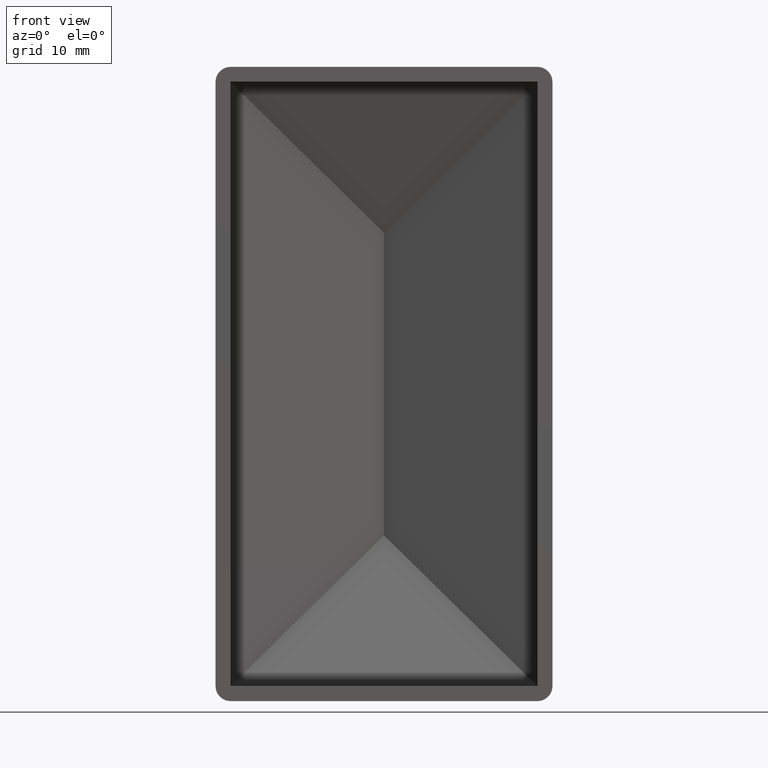
[diagram: clean part render]
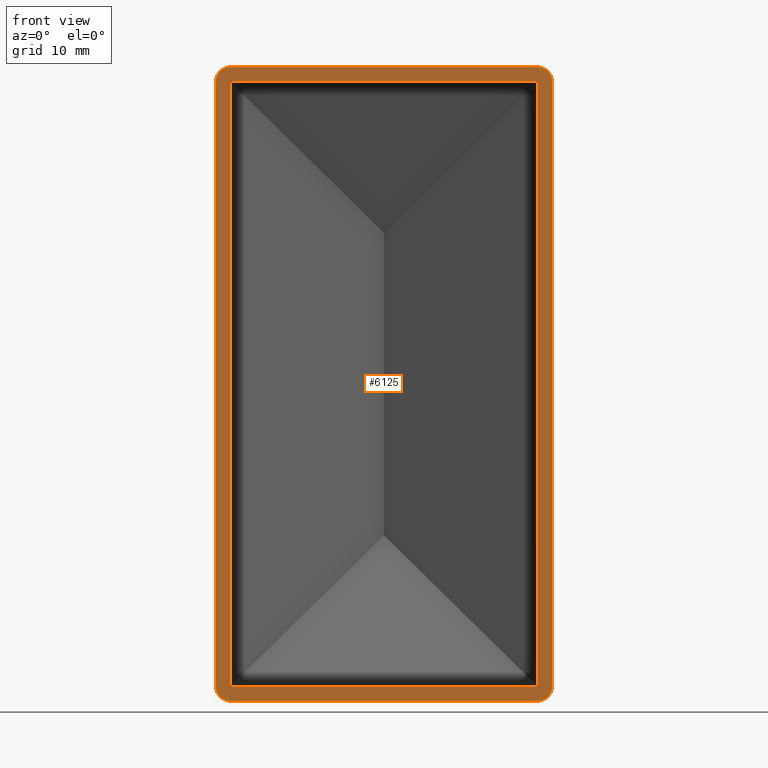
[diagram: same view with one face highlighted and labeled with its STEP entity id]
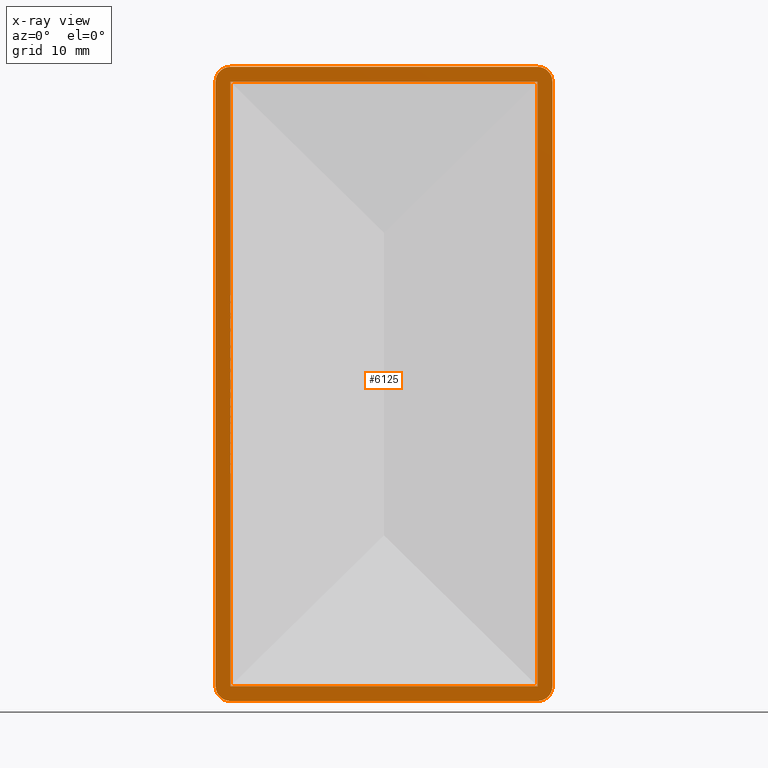
[diagram: x-ray of the same camera — body ghosted, the highlighted face saturated]
A machine part, front view. The second image highlights one B-rep face of the part: STEP entity #6125.
The next image is the same camera in x-ray: the body ghosted, the highlighted face saturated — about 0% of this face is hidden behind the body in this view.
In plain terms, the highlighted planar face has unit normal (0, 1, 0).
Its self-contained STEP definition (entity closure, byte-faithful):
#133 = CARTESIAN_POINT ( 'NONE',  ( -15.50000000000000533, 0.000000000000000000, -30.49999999999999289 ) ) ;
#204 = VERTEX_POINT ( 'NONE', #3719 ) ;
#410 = EDGE_CURVE ( 'NONE', #7185, #11299, #9042, .T. ) ;
#510 = EDGE_CURVE ( 'NONE', #4870, #5391, #12476, .T. ) ;
#578 = EDGE_CURVE ( 'NONE', #4590, #204, #8718, .T. ) ;
#990 = LINE ( 'NONE', #2092, #9691 ) ;
#1066 = DIRECTION ( 'NONE',  ( -1.000000000000000000, -0.000000000000000000, -0.000000000000000000 ) ) ;
#1197 = CARTESIAN_POINT ( 'NONE',  ( -15.50000000000000533, 0.000000000000000000, -30.49999999999999289 ) ) ;
#1207 = CARTESIAN_POINT ( 'NONE',  ( 15.49999999999998934, 0.000000000000000000, -31.99999999999999289 ) ) ;
#1411 = EDGE_CURVE ( 'NONE', #4870, #4600, #4957, .T. ) ;
#1430 = VERTEX_POINT ( 'NONE', #13099 ) ;
#1437 = DIRECTION ( 'NONE',  ( 0.000000000000000000, -0.000000000000000000, 1.000000000000000000 ) ) ;
#1730 = ORIENTED_EDGE ( 'NONE', *, *, #578, .T. ) ;
#1947 = ORIENTED_EDGE ( 'NONE', *, *, #2541, .F. ) ;
#1951 = EDGE_LOOP ( 'NONE', ( #1947, #10715, #2802, #4900, #8410, #6427, #9377, #1730 ) ) ;
#2023 = CARTESIAN_POINT ( 'NONE',  ( 15.50000000000001066, 0.000000000000000000, 32.00000000000000711 ) ) ;
#2025 = VECTOR ( 'NONE', #3274, 1000.000000000000000 ) ;
#2076 = VERTEX_POINT ( 'NONE', #6349 ) ;
#2092 = CARTESIAN_POINT ( 'NONE',  ( -17.00000000000000355, 0.000000000000000000, -31.99999999999999289 ) ) ;
#2131 = ORIENTED_EDGE ( 'NONE', *, *, #7107, .T. ) ;
#2266 = DIRECTION ( 'NONE',  ( 0.000000000000000000, 0.000000000000000000, 1.000000000000000000 ) ) ;
#2389 = PLANE ( 'NONE',  #3623 ) ;
#2451 = VERTEX_POINT ( 'NONE', #133 ) ;
#2541 = EDGE_CURVE ( 'NONE', #7185, #204, #990, .T. ) ;
#2802 = ORIENTED_EDGE ( 'NONE', *, *, #4716, .F. ) ;
#2882 = CARTESIAN_POINT ( 'NONE',  ( -15.49999999999999822, 0.000000000000000000, 30.50000000000000711 ) ) ;
#2961 = DIRECTION ( 'NONE',  ( -3.252606517456513302E-16, 0.000000000000000000, -1.000000000000000000 ) ) ;
#3161 = CARTESIAN_POINT ( 'NONE',  ( -17.00000000000000355, 0.000000000000000000, -30.49999999999999289 ) ) ;
#3197 = AXIS2_PLACEMENT_3D ( 'NONE', #1197, #12860, #2266 ) ;
#3274 = DIRECTION ( 'NONE',  ( 1.000000000000000000, 0.000000000000000000, 0.000000000000000000 ) ) ;
#3363 = CARTESIAN_POINT ( 'NONE',  ( -15.49999999999999822, 0.000000000000000000, 32.00000000000000711 ) ) ;
#3374 = CARTESIAN_POINT ( 'NONE',  ( -16.99999999999999645, 0.000000000000000000, 32.00000000000000711 ) ) ;
#3376 = DIRECTION ( 'NONE',  ( -0.000000000000000000, -1.000000000000000000, -0.000000000000000000 ) ) ;
#3500 = CARTESIAN_POINT ( 'NONE',  ( 0.000000000000000000, 0.000000000000000000, 0.000000000000000000 ) ) ;
#3596 = DIRECTION ( 'NONE',  ( 0.000000000000000000, 1.000000000000000000, 0.000000000000000000 ) ) ;
#3623 = AXIS2_PLACEMENT_3D ( 'NONE', #3500, #3596, #1437 ) ;
#3629 = VECTOR ( 'NONE', #4355, 1000.000000000000000 ) ;
#3655 = CIRCLE ( 'NONE', #9196, 1.500000000000001332 ) ;
#3719 = CARTESIAN_POINT ( 'NONE',  ( -15.50000000000000533, 0.000000000000000000, -31.99999999999999289 ) ) ;
#3979 = LINE ( 'NONE', #12041, #3629 ) ;
#4053 = CARTESIAN_POINT ( 'NONE',  ( 15.50000000000001243, 0.000000000000000000, 30.50000000000000711 ) ) ;
#4334 = EDGE_CURVE ( 'NONE', #4590, #5391, #12929, .T. ) ;
#4355 = DIRECTION ( 'NONE',  ( 1.000000000000000000, -0.000000000000000000, 0.000000000000000000 ) ) ;
#4394 = FACE_BOUND ( 'NONE', #6121, .T. ) ;
#4590 = VERTEX_POINT ( 'NONE', #13037 ) ;
#4600 = VERTEX_POINT ( 'NONE', #2023 ) ;
#4716 = EDGE_CURVE ( 'NONE', #1430, #11299, #7783, .T. ) ;
#4870 = VERTEX_POINT ( 'NONE', #3363 ) ;
#4900 = ORIENTED_EDGE ( 'NONE', *, *, #8829, .T. ) ;
#4957 = LINE ( 'NONE', #3374, #2025 ) ;
#5268 = VERTEX_POINT ( 'NONE', #12426 ) ;
#5391 = VERTEX_POINT ( 'NONE', #9441 ) ;
#5603 = VECTOR ( 'NONE', #10737, 1000.000000000000000 ) ;
#6098 = VECTOR ( 'NONE', #6948, 1000.000000000000000 ) ;
#6121 = EDGE_LOOP ( 'NONE', ( #2131, #12983, #12968, #9747 ) ) ;
#6125 = ADVANCED_FACE ( 'NONE', ( #4394, #6293 ), #2389, .F. ) ;
#6293 = FACE_OUTER_BOUND ( 'NONE', #1951, .T. ) ;
#6328 = DIRECTION ( 'NONE',  ( 0.000000000000000000, 0.000000000000000000, 1.000000000000000000 ) ) ;
#6349 = CARTESIAN_POINT ( 'NONE',  ( 15.49999999999999112, 0.000000000000000000, -30.49999999999999289 ) ) ;
#6427 = ORIENTED_EDGE ( 'NONE', *, *, #510, .T. ) ;
#6948 = DIRECTION ( 'NONE',  ( 1.084202172485504557E-16, -0.000000000000000000, 1.000000000000000000 ) ) ;
#7024 = CARTESIAN_POINT ( 'NONE',  ( 16.99999999999998934, 0.000000000000000000, -31.99999999999999289 ) ) ;
#7107 = EDGE_CURVE ( 'NONE', #5268, #2076, #14130, .T. ) ;
#7120 = VECTOR ( 'NONE', #2961, 1000.000000000000000 ) ;
#7155 = AXIS2_PLACEMENT_3D ( 'NONE', #9920, #3376, #11030 ) ;
#7185 = VERTEX_POINT ( 'NONE', #1207 ) ;
#7314 = DIRECTION ( 'NONE',  ( 2.312964634635740689E-15, 0.000000000000000000, 1.000000000000000000 ) ) ;
#7424 = EDGE_CURVE ( 'NONE', #2451, #10537, #8973, .T. ) ;
#7712 = DIRECTION ( 'NONE',  ( 1.084202172485504434E-16, 0.000000000000000000, 1.000000000000000000 ) ) ;
#7783 = LINE ( 'NONE', #7024, #5603 ) ;
#8048 = EDGE_CURVE ( 'NONE', #2076, #2451, #11891, .T. ) ;
#8406 = DIRECTION ( 'NONE',  ( -0.000000000000000000, -1.000000000000000000, -0.000000000000000000 ) ) ;
#8410 = ORIENTED_EDGE ( 'NONE', *, *, #1411, .F. ) ;
#8557 = CARTESIAN_POINT ( 'NONE',  ( 15.49999999999998934, 0.000000000000000000, -30.49999999999999289 ) ) ;
#8718 = CIRCLE ( 'NONE', #3197, 1.500000000000001332 ) ;
#8829 = EDGE_CURVE ( 'NONE', #1430, #4600, #3655, .T. ) ;
#8962 = VECTOR ( 'NONE', #13136, 1000.000000000000000 ) ;
#8973 = LINE ( 'NONE', #10374, #6098 ) ;
#9042 = CIRCLE ( 'NONE', #11728, 1.500000000000001332 ) ;
#9196 = AXIS2_PLACEMENT_3D ( 'NONE', #4053, #10696, #7314 ) ;
#9377 = ORIENTED_EDGE ( 'NONE', *, *, #4334, .F. ) ;
#9441 = CARTESIAN_POINT ( 'NONE',  ( -16.99999999999999645, 0.000000000000000000, 30.50000000000000711 ) ) ;
#9654 = EDGE_CURVE ( 'NONE', #10537, #5268, #3979, .T. ) ;
#9691 = VECTOR ( 'NONE', #1066, 1000.000000000000000 ) ;
#9747 = ORIENTED_EDGE ( 'NONE', *, *, #9654, .T. ) ;
#9920 = CARTESIAN_POINT ( 'NONE',  ( -15.49999999999999822, 0.000000000000000000, 30.50000000000000711 ) ) ;
#10374 = CARTESIAN_POINT ( 'NONE',  ( -15.50000000000000533, 0.000000000000000000, -31.99999999999999289 ) ) ;
#10537 = VERTEX_POINT ( 'NONE', #2882 ) ;
#10696 = DIRECTION ( 'NONE',  ( -0.000000000000000000, -1.000000000000000000, -0.000000000000000000 ) ) ;
#10715 = ORIENTED_EDGE ( 'NONE', *, *, #410, .T. ) ;
#10737 = DIRECTION ( 'NONE',  ( -3.252606517456513302E-16, -0.000000000000000000, -1.000000000000000000 ) ) ;
#11030 = DIRECTION ( 'NONE',  ( 0.000000000000000000, 0.000000000000000000, 1.000000000000000000 ) ) ;
#11299 = VERTEX_POINT ( 'NONE', #13259 ) ;
#11728 = AXIS2_PLACEMENT_3D ( 'NONE', #8557, #8406, #6328 ) ;
#11891 = LINE ( 'NONE', #3161, #8962 ) ;
#12022 = CARTESIAN_POINT ( 'NONE',  ( -17.00000000000000355, 0.000000000000000000, -31.99999999999999289 ) ) ;
#12041 = CARTESIAN_POINT ( 'NONE',  ( -16.99999999999999645, 0.000000000000000000, 30.50000000000000711 ) ) ;
#12426 = CARTESIAN_POINT ( 'NONE',  ( 15.50000000000001243, 0.000000000000000000, 30.50000000000000711 ) ) ;
#12476 = CIRCLE ( 'NONE', #7155, 1.500000000000001332 ) ;
#12860 = DIRECTION ( 'NONE',  ( -0.000000000000000000, -1.000000000000000000, -0.000000000000000000 ) ) ;
#12929 = LINE ( 'NONE', #12022, #13276 ) ;
#12968 = ORIENTED_EDGE ( 'NONE', *, *, #7424, .T. ) ;
#12983 = ORIENTED_EDGE ( 'NONE', *, *, #8048, .T. ) ;
#13037 = CARTESIAN_POINT ( 'NONE',  ( -17.00000000000000355, 0.000000000000000000, -30.49999999999999289 ) ) ;
#13099 = CARTESIAN_POINT ( 'NONE',  ( 17.00000000000001066, 0.000000000000000000, 30.50000000000000711 ) ) ;
#13136 = DIRECTION ( 'NONE',  ( -1.000000000000000000, 0.000000000000000000, 0.000000000000000000 ) ) ;
#13259 = CARTESIAN_POINT ( 'NONE',  ( 16.99999999999998934, 0.000000000000000000, -30.49999999999999289 ) ) ;
#13276 = VECTOR ( 'NONE', #7712, 1000.000000000000000 ) ;
#14024 = CARTESIAN_POINT ( 'NONE',  ( 15.49999999999999112, 0.000000000000000000, -31.99999999999999289 ) ) ;
#14130 = LINE ( 'NONE', #14024, #7120 ) ;